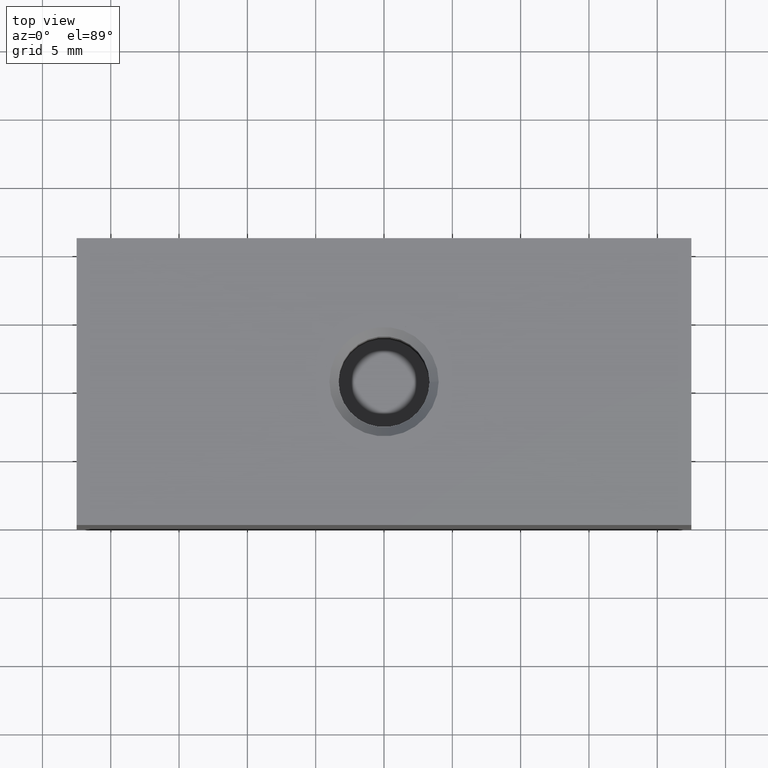
[diagram: clean part render]
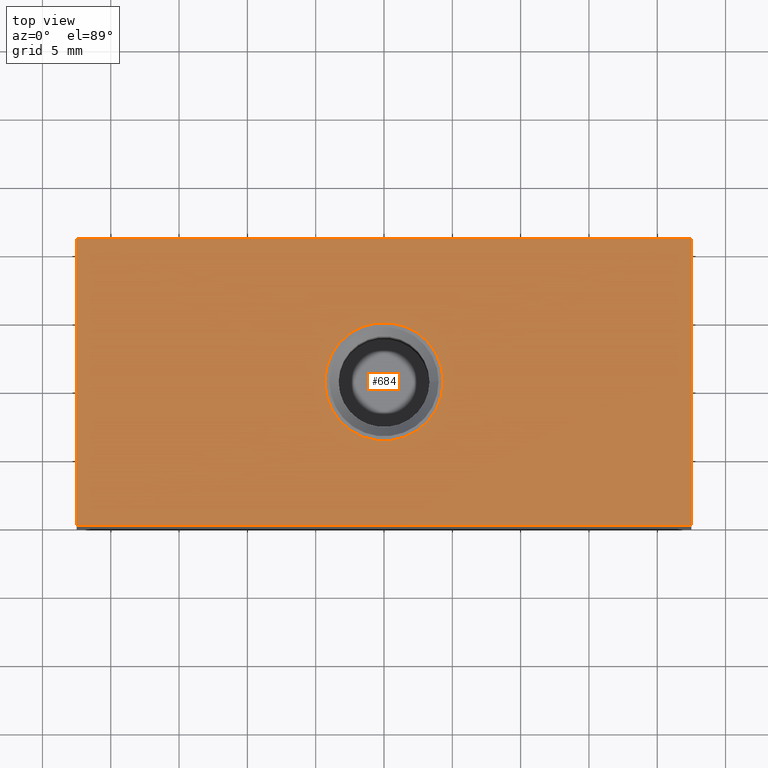
[diagram: same view with one face highlighted and labeled with its STEP entity id]
A machine part, top view. The second image highlights one B-rep face of the part: STEP entity #684.
In plain terms, the highlighted planar face has unit normal (0, 0, 1).
Its self-contained STEP definition (entity closure, byte-faithful):
#51=FACE_BOUND('',#128,.T.);
#61=PLANE('',#796);
#90=FACE_OUTER_BOUND('',#127,.T.);
#127=EDGE_LOOP('',(#501,#502,#503,#504));
#128=EDGE_LOOP('',(#505,#506));
#166=LINE('',#1112,#216);
#170=LINE('',#1119,#220);
#171=LINE('',#1122,#221);
#172=LINE('',#1123,#222);
#216=VECTOR('',#903,10.);
#220=VECTOR('',#909,10.);
#221=VECTOR('',#912,10.);
#222=VECTOR('',#913,10.);
#261=CIRCLE('',#777,4.33);
#262=CIRCLE('',#778,4.33);
#299=VERTEX_POINT('',#1073);
#300=VERTEX_POINT('',#1074);
#313=VERTEX_POINT('',#1109);
#314=VERTEX_POINT('',#1111);
#316=VERTEX_POINT('',#1117);
#317=VERTEX_POINT('',#1121);
#369=EDGE_CURVE('',#299,#300,#261,.T.);
#370=EDGE_CURVE('',#300,#299,#262,.T.);
#386=EDGE_CURVE('',#313,#314,#166,.T.);
#390=EDGE_CURVE('',#313,#316,#170,.T.);
#391=EDGE_CURVE('',#317,#316,#171,.T.);
#392=EDGE_CURVE('',#314,#317,#172,.T.);
#501=ORIENTED_EDGE('',*,*,#390,.T.);
#502=ORIENTED_EDGE('',*,*,#391,.F.);
#503=ORIENTED_EDGE('',*,*,#392,.F.);
#504=ORIENTED_EDGE('',*,*,#386,.F.);
#505=ORIENTED_EDGE('',*,*,#369,.T.);
#506=ORIENTED_EDGE('',*,*,#370,.T.);
#684=ADVANCED_FACE('',(#90,#51),#61,.T.);
#777=AXIS2_PLACEMENT_3D('',#1075,#862,#863);
#778=AXIS2_PLACEMENT_3D('',#1076,#864,#865);
#796=AXIS2_PLACEMENT_3D('',#1120,#910,#911);
#862=DIRECTION('center_axis',(0.,0.,-1.));
#863=DIRECTION('ref_axis',(1.,0.,0.));
#864=DIRECTION('center_axis',(0.,0.,-1.));
#865=DIRECTION('ref_axis',(1.,0.,0.));
#903=DIRECTION('',(0.,1.,0.));
#909=DIRECTION('',(1.,0.,0.));
#910=DIRECTION('center_axis',(0.,0.,1.));
#911=DIRECTION('ref_axis',(0.,-1.,0.));
#912=DIRECTION('',(0.,-1.,0.));
#913=DIRECTION('',(1.,0.,0.));
#1073=CARTESIAN_POINT('',(4.33,10.5,10.));
#1074=CARTESIAN_POINT('',(-4.33,10.5,10.));
#1075=CARTESIAN_POINT('Origin',(0.,10.5,10.));
#1076=CARTESIAN_POINT('Origin',(0.,10.5,10.));
#1109=CARTESIAN_POINT('',(-22.5,-3.60822483003176E-15,10.));
#1111=CARTESIAN_POINT('',(-22.5,21.,10.));
#1112=CARTESIAN_POINT('',(-22.5,21.,10.));
#1117=CARTESIAN_POINT('',(22.5,-3.60822483003176E-15,10.));
#1119=CARTESIAN_POINT('',(0.,-3.60822483003176E-15,10.));
#1120=CARTESIAN_POINT('Origin',(0.,21.,10.));
#1121=CARTESIAN_POINT('',(22.5,21.,10.));
#1122=CARTESIAN_POINT('',(22.5,21.,10.));
#1123=CARTESIAN_POINT('',(0.,21.,10.));